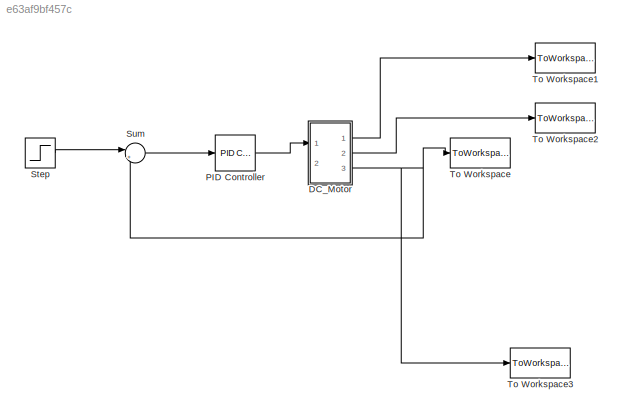
MODEL slx_e63af9bf457c
KIND library
CONFIG AbsTol = auto
CONFIG FixedStep = auto
CONFIG MaxStep = auto
CONFIG MinStep = auto
CONFIG RelTol = 1e-3
CONFIG SampleTimeConstraint = Unconstrained
CONFIG Solver = ode45
CONFIG SolverMode = Auto
CONFIG SolverName = ode45
CONFIG StartTime = 0.0
CONFIG StopTime = 10.0
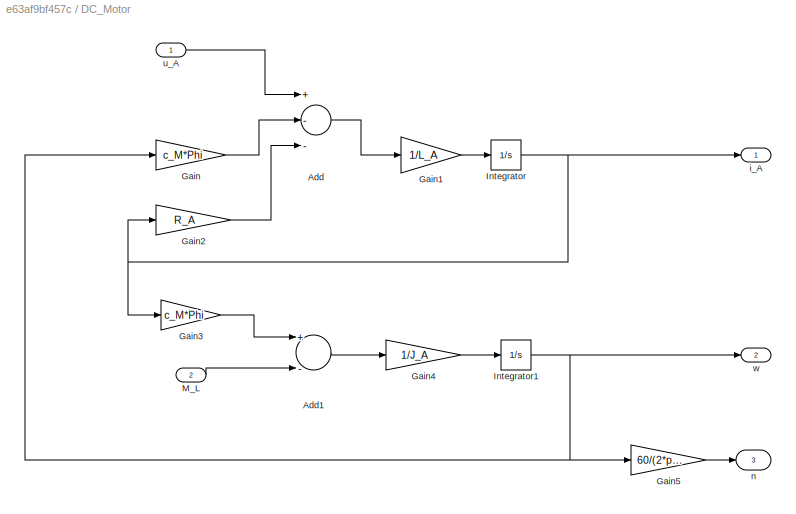
BLOCK [SubSystem] DC_Motor 
  Ports = [2, 3]
  RequestExecContextInheritance = off
  Variant = off
BLOCK [Sum] DC_Motor /Add
  InputSameDT = off
  Inputs = +--
  OutDataTypeStr = Inherit: Inherit via internal rule
  Ports = [3, 1]
  SaturateOnIntegerOverflow = off
BLOCK [Sum] DC_Motor /Add1
  InputSameDT = off
  Inputs = +-
  OutDataTypeStr = Inherit: Inherit via internal rule
  Ports = [2, 1]
  SaturateOnIntegerOverflow = off
BLOCK [Gain] DC_Motor /Gain
  Gain = c_M*Phi
  OutDataTypeStr = Inherit: Inherit via internal rule
  ParamDataTypeStr = Inherit: Inherit via internal rule
  SaturateOnIntegerOverflow = off
BLOCK [Gain] DC_Motor /Gain1
  Gain = 1/L_A
  OutDataTypeStr = Inherit: Inherit via internal rule
  ParamDataTypeStr = Inherit: Inherit via internal rule
  SaturateOnIntegerOverflow = off
BLOCK [Gain] DC_Motor /Gain2
  Gain = R_A
  OutDataTypeStr = Inherit: Inherit via internal rule
  ParamDataTypeStr = Inherit: Inherit via internal rule
  SaturateOnIntegerOverflow = off
BLOCK [Gain] DC_Motor /Gain3
  Gain = c_M*Phi
  OutDataTypeStr = Inherit: Inherit via internal rule
  ParamDataTypeStr = Inherit: Inherit via internal rule
  SaturateOnIntegerOverflow = off
BLOCK [Gain] DC_Motor /Gain4
  Gain = 1/J_A
  OutDataTypeStr = Inherit: Inherit via internal rule
  ParamDataTypeStr = Inherit: Inherit via internal rule
  SaturateOnIntegerOverflow = off
BLOCK [Gain] DC_Motor /Gain5
  Gain = 60/(2*pi)
  OutDataTypeStr = Inherit: Inherit via internal rule
  ParamDataTypeStr = Inherit: Inherit via internal rule
  SaturateOnIntegerOverflow = off
BLOCK [Integrator] DC_Motor /Integrator
  Ports = [1, 1]
BLOCK [Integrator] DC_Motor /Integrator1
  Ports = [1, 1]
BLOCK [Inport] DC_Motor /M_L
  IconDisplay = Port number
  Port = 2
BLOCK [Outport] DC_Motor /i_A
  IconDisplay = Port number
BLOCK [Outport] DC_Motor /n
  IconDisplay = Port number
  Port = 3
BLOCK [Inport] DC_Motor /u_A
  IconDisplay = Port number
BLOCK [Outport] DC_Motor /w
  IconDisplay = Port number
  Port = 2
BLOCK [Reference] PID Controller  REF=simulink/Continuous/PID Controller
  Ports = [1, 1]
  SourceBlock = simulink/Continuous/PID Controller
  SourceType = PID 1dof
BLOCK [Step] Step
  SampleTime = 0
BLOCK [Sum] Sum
  IconShape = round
  InputSameDT = off
  Inputs = |++
  OutDataTypeStr = Inherit: Inherit via internal rule
  Ports = [2, 1]
  SaturateOnIntegerOverflow = off
BLOCK [ToWorkspace] To Workspace
  FixptAsFi = on
  MaxDataPoints = inf
  Ports = [1]
  SampleTime = -1
  Save2DSignal = 3-D array (concatenate along third dimension)
  SaveFormat = Timeseries
  VariableName = n_ist
BLOCK [ToWorkspace] To Workspace1
  FixptAsFi = on
  MaxDataPoints = inf
  Ports = [1]
  SampleTime = -1
  Save2DSignal = 3-D array (concatenate along third dimension)
  SaveFormat = Timeseries
  VariableName = i_A
BLOCK [ToWorkspace] To Workspace2
  FixptAsFi = on
  MaxDataPoints = inf
  Ports = [1]
  SampleTime = -1
  Save2DSignal = 3-D array (concatenate along third dimension)
  SaveFormat = Timeseries
  VariableName = om_A
BLOCK [ToWorkspace] To Workspace3
  FixptAsFi = on
  MaxDataPoints = inf
  Ports = [1]
  SampleTime = -1
  Save2DSignal = 3-D array (concatenate along third dimension)
  SaveFormat = Timeseries
  VariableName = n_A
LINE DC_Motor /Add1:1 -> DC_Motor /Gain4:1
LINE DC_Motor /Add:1 -> DC_Motor /Gain1:1
LINE DC_Motor /Gain1:1 -> DC_Motor /Integrator:1
LINE DC_Motor /Gain2:1 -> DC_Motor /Add:3
LINE DC_Motor /Gain3:1 -> DC_Motor /Add1:1
LINE DC_Motor /Gain4:1 -> DC_Motor /Integrator1:1
LINE DC_Motor /Gain5:1 -> DC_Motor /n:1
LINE DC_Motor /Gain:1 -> DC_Motor /Add:2
NET DC_Motor /Integrator1:1 -> DC_Motor /Gain5:1, DC_Motor /Gain:1, DC_Motor /w:1
NET DC_Motor /Integrator:1 -> DC_Motor /Gain2:1, DC_Motor /Gain3:1, DC_Motor /i_A:1
LINE DC_Motor /M_L:1 -> DC_Motor /Add1:2
LINE DC_Motor /u_A:1 -> DC_Motor /Add:1
LINE DC_Motor :1 -> To Workspace1:1
LINE DC_Motor :2 -> To Workspace2:1
NET DC_Motor :3 -> Sum:2, To Workspace3:1, To Workspace:1
LINE PID Controller:1 -> DC_Motor :1
LINE Step:1 -> Sum:1
LINE Sum:1 -> PID Controller:1
note: NET lines group one-source signal fan-out (src -> all destinations, sorted); 1:1 wires keep LINE
